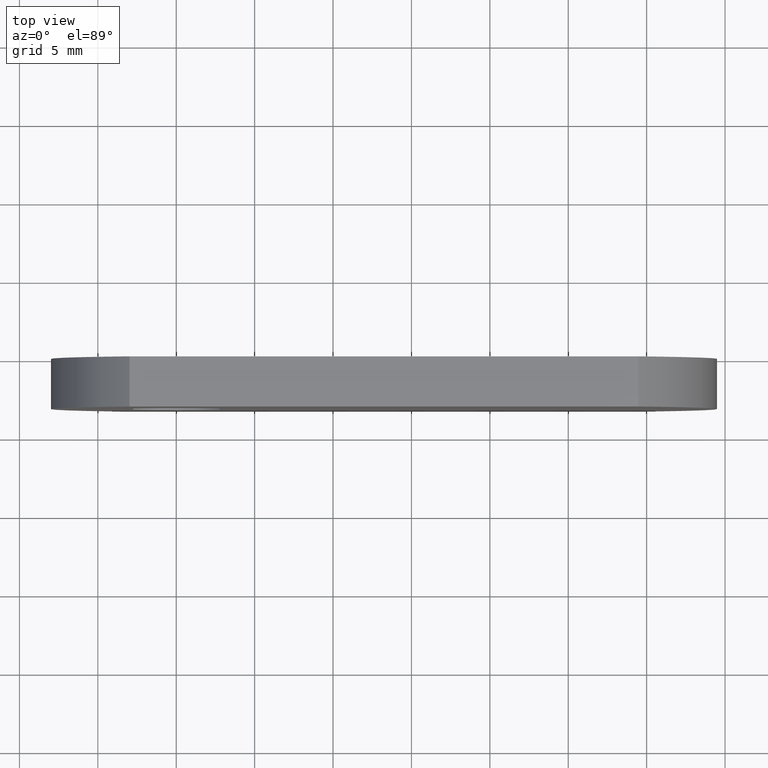
[diagram: clean part render]
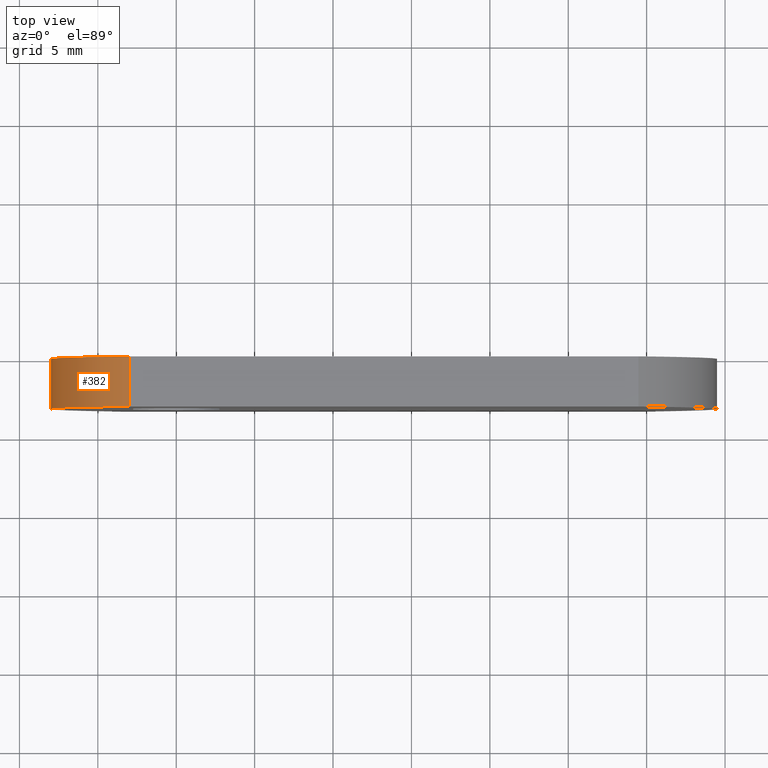
[diagram: same view with one face highlighted and labeled with its STEP entity id]
A machine part, top view. The second image highlights one B-rep face of the part: STEP entity #382.
In plain terms, the highlighted face is a freeform B-spline surface patch.
Its self-contained STEP definition (entity closure, byte-faithful):
#68=CARTESIAN_POINT('',(-2.980740698407860,0.0,-9.500000000000000));
#69=VERTEX_POINT('',#68);
#75=CARTESIAN_POINT('',(-2.980740698407840,0.0,9.500000000000000));
#76=VERTEX_POINT('',#75);
#77=CARTESIAN_POINT('',(-2.980740698407848,0.0,9.500000000000007));
#78=CARTESIAN_POINT('',(-8.0,0.0,6.075945470348390));
#79=CARTESIAN_POINT('',(-8.0,0.0,0.0));
#80=CARTESIAN_POINT('',(-8.0,0.0,-6.075945470348378));
#81=CARTESIAN_POINT('',(-2.980740698407861,0.0,-9.499999999999998));
#89=(BOUNDED_CURVE()B_SPLINE_CURVE(2,(#77,#78,#79,#80,#81),.UNSPECIFIED.,.F.,.U.)B_SPLINE_CURVE_WITH_KNOTS((3,2,3),(0.0,0.500000000000000,1.0),.UNSPECIFIED.)CURVE()GEOMETRIC_REPRESENTATION_ITEM()RATIONAL_B_SPLINE_CURVE((1.0,0.884178338749251,1.0,0.884178338749251,1.0))REPRESENTATION_ITEM(''));
#90=EDGE_CURVE('',#76,#69,#89,.T.);
#174=CARTESIAN_POINT('',(-2.980740698407840,-3.200000000000000,9.500000000000000));
#175=VERTEX_POINT('',#174);
#181=CARTESIAN_POINT('',(-2.980740698407860,-3.200000000000000,-9.500000000000000));
#182=VERTEX_POINT('',#181);
#183=CARTESIAN_POINT('',(-2.980740698407848,-3.200000000000000,9.500000000000007));
#184=CARTESIAN_POINT('',(-8.0,-3.200000000000001,6.075945470348390));
#185=CARTESIAN_POINT('',(-8.0,-3.200000000000000,0.0));
#186=CARTESIAN_POINT('',(-8.0,-3.200000000000001,-6.075945470348378));
#187=CARTESIAN_POINT('',(-2.980740698407861,-3.200000000000000,-9.499999999999998));
#195=(BOUNDED_CURVE()B_SPLINE_CURVE(2,(#183,#184,#185,#186,#187),.UNSPECIFIED.,.F.,.U.)B_SPLINE_CURVE_WITH_KNOTS((3,2,3),(0.0,0.500000000000000,1.0),.UNSPECIFIED.)CURVE()GEOMETRIC_REPRESENTATION_ITEM()RATIONAL_B_SPLINE_CURVE((1.0,0.884178338749251,1.0,0.884178338749251,1.0))REPRESENTATION_ITEM(''));
#196=EDGE_CURVE('',#175,#182,#195,.T.);
#268=CARTESIAN_POINT('',(-2.980740698407860,-3.200000000000000,-9.500000000000000));
#269=CARTESIAN_POINT('',(-2.980740698407860,0.0,-9.500000000000000));
#270=QUASI_UNIFORM_CURVE('',1,(#268,#269),.UNSPECIFIED.,.F.,.U.);
#271=EDGE_CURVE('',#182,#69,#270,.T.);
#358=CARTESIAN_POINT('',(-2.897591844425604,-3.280000000000000,9.556192682870039));
#359=CARTESIAN_POINT('',(-2.897591844425604,0.082000000000000,9.556192682870039));
#360=CARTESIAN_POINT('',(-17.897809670882388,-3.280000000000000,-0.486014963609305));
#361=CARTESIAN_POINT('',(-17.897809670882388,0.082000000000000,-0.486014963609305));
#362=CARTESIAN_POINT('',(-2.457112698290155,-3.280000000000000,-9.836808847378810));
#363=CARTESIAN_POINT('',(-2.457112698290155,0.082000000000000,-9.836808847378810));
#371=(BOUNDED_SURFACE()B_SPLINE_SURFACE(1,2,((#358,#360,#362),(#359,#361,#363)),.UNSPECIFIED.,.F.,.F.,.U.)B_SPLINE_SURFACE_WITH_KNOTS((2,2),(3,3),(0.0,3.362000000000001),(0.0,25.236464184826680),.UNSPECIFIED.)GEOMETRIC_REPRESENTATION_ITEM()RATIONAL_B_SPLINE_SURFACE(((1.0,0.537299608346824,1.0),(1.0,0.537299608346824,1.0)))REPRESENTATION_ITEM('')SURFACE());
#372=ORIENTED_EDGE('',*,*,#90,.T.);
#373=ORIENTED_EDGE('',*,*,#271,.F.);
#374=ORIENTED_EDGE('',*,*,#196,.F.);
#375=CARTESIAN_POINT('',(-2.980740698407840,-3.200000000000000,9.500000000000000));
#376=CARTESIAN_POINT('',(-2.980740698407840,0.0,9.500000000000000));
#377=QUASI_UNIFORM_CURVE('',1,(#375,#376),.UNSPECIFIED.,.F.,.U.);
#378=EDGE_CURVE('',#175,#76,#377,.T.);
#379=ORIENTED_EDGE('',*,*,#378,.T.);
#380=EDGE_LOOP('',(#372,#373,#374,#379));
#381=FACE_OUTER_BOUND('',#380,.T.);
#382=ADVANCED_FACE('',(#381),#371,.T.);